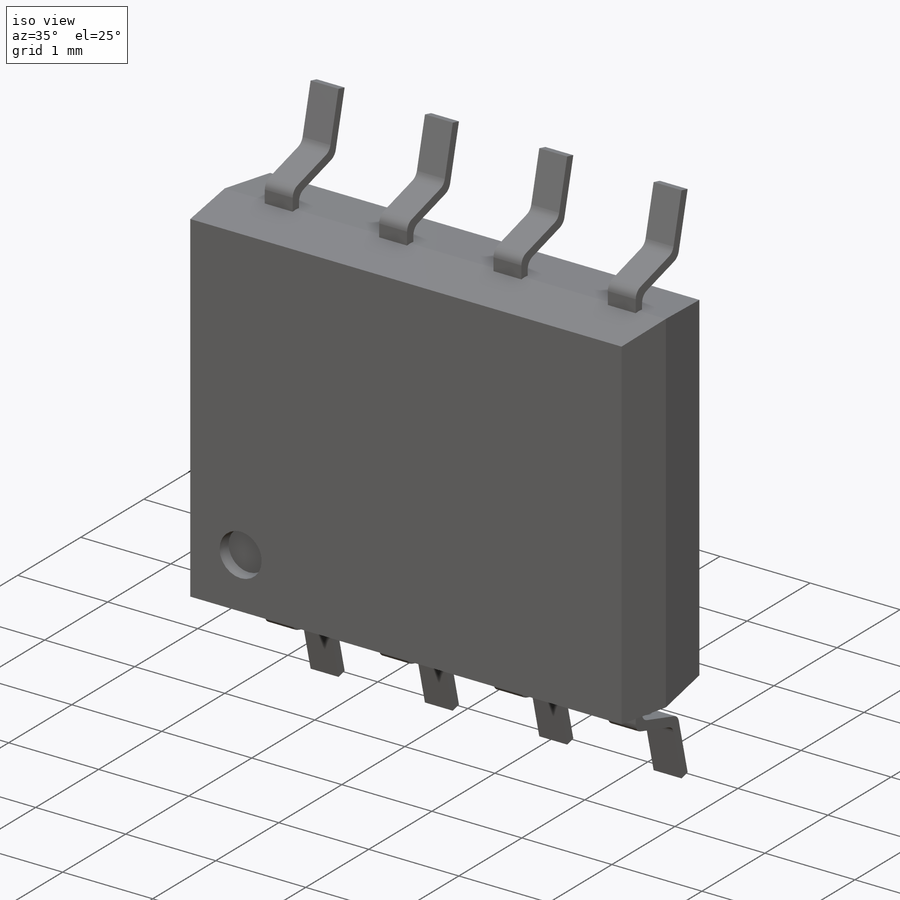
[diagram: iso view]
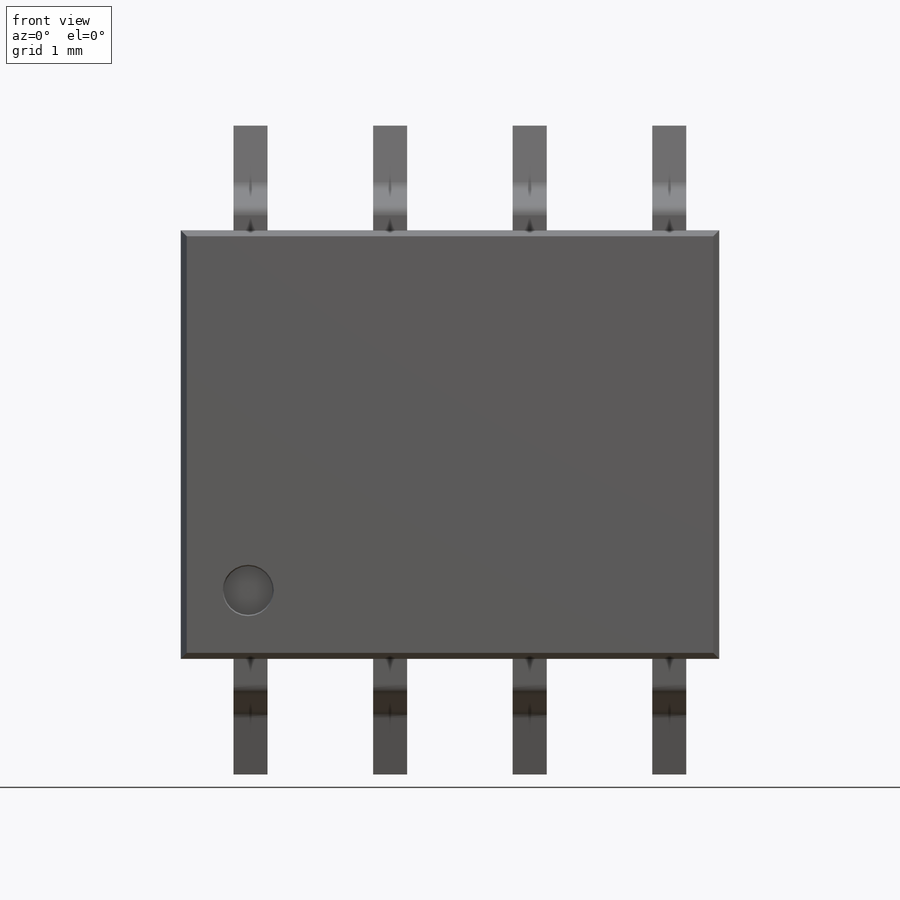
[diagram: front view]
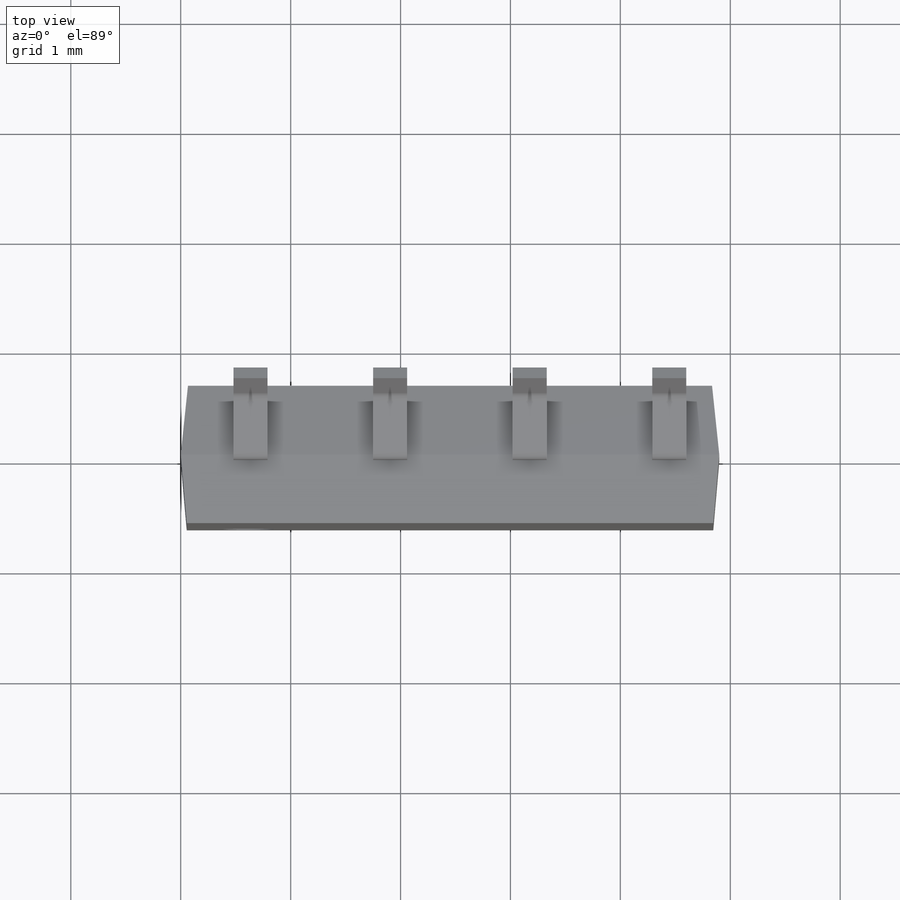
[diagram: top view]
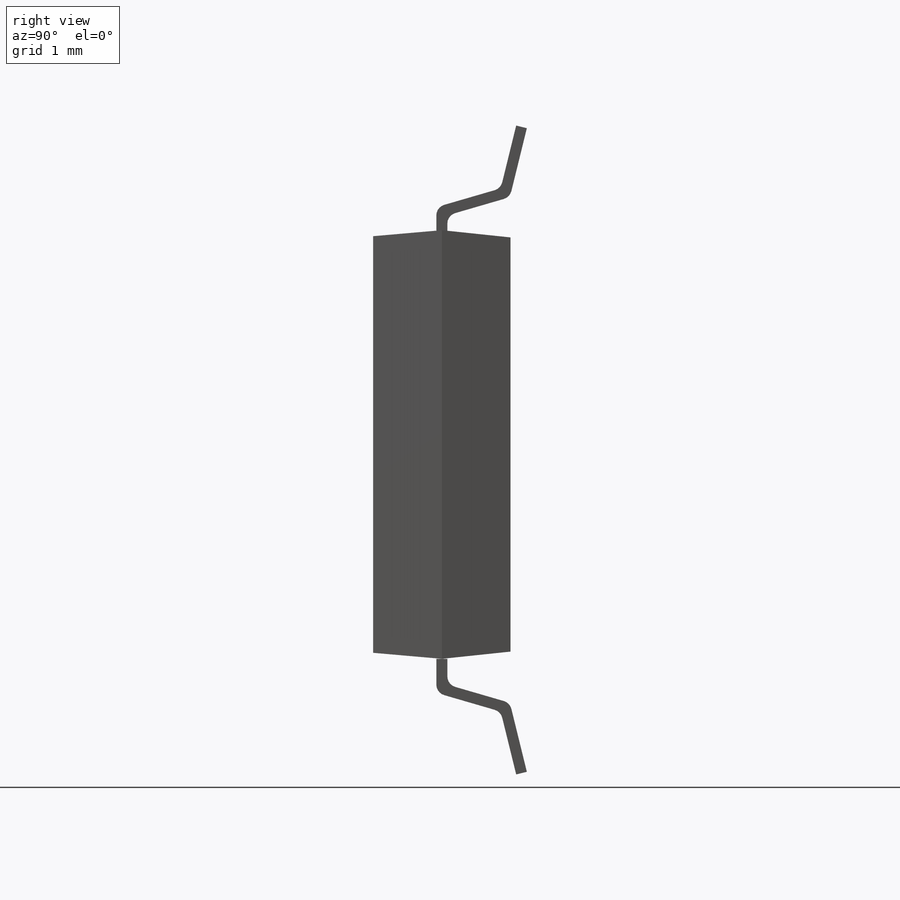
[diagram: right view]
SOLIDWORKS PART (.sldprt)
format: sldprt  version: not decoded by parser v0  size: 292,352 bytes
history: native  units: mm
features: sketch x4, fillet x4, extrude x2, plane x2, material x1, cut_extrude x1, pattern_linear x1, mirror x1 (+13 scaffold rows collapsed)
feature tree (29):
  scaffold x13  (default folders/planes/origin — collapsed)
  material  "Material <not specified>"
  sketch  "Sketch1"  dims[D1=4.9mm D2=3.9mm]
  extrude  "Boss-Extrude1"  Depth=0.625mm
  sketch  "Sketch2"
  extrude  "Boss-Extrude2"  Depth=0.625mm
  sketch  "Sketch3"
  cut_extrude  "Cut-Extrude1"  Depth=0.127mm
  plane  "Plane1"  Offset=0.635mm
  sketch  "Sketch4"  dims[c1.D1=0.6mm c1.D2=0.25mm c1.D3=1.04mm c1.D4=0.1mm c2.D1=0.31mm c2.D5=0.1mm c2.D6=2.54mm c2.D7=5.0mm]
  pattern_linear  "LPattern4"  Count1=4 Count2=1 Spacing1=1.27mm Spacing2=2.54mm
  fillet  "Fillet1"  Radius=0.1mm
  plane  "Plane3"  Offset=1.9mm
  fillet  "Fillet2"  Radius=0.1mm
  fillet  "Fillet3"  Radius=0.1mm
  fillet  "Fillet4"  Radius=0.1mm
  mirror  "Mirror3"
decode coverage: 10 of 13 modeling features carry decoded parameters
note: suppression state not decoded; provenance and decode notes live in map.json
